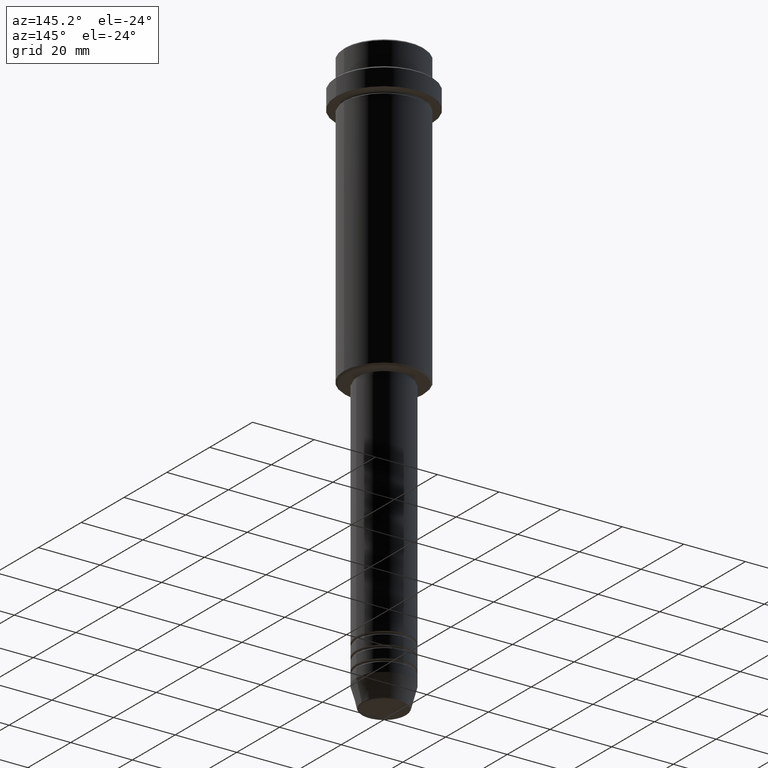
[diagram: clean part render]
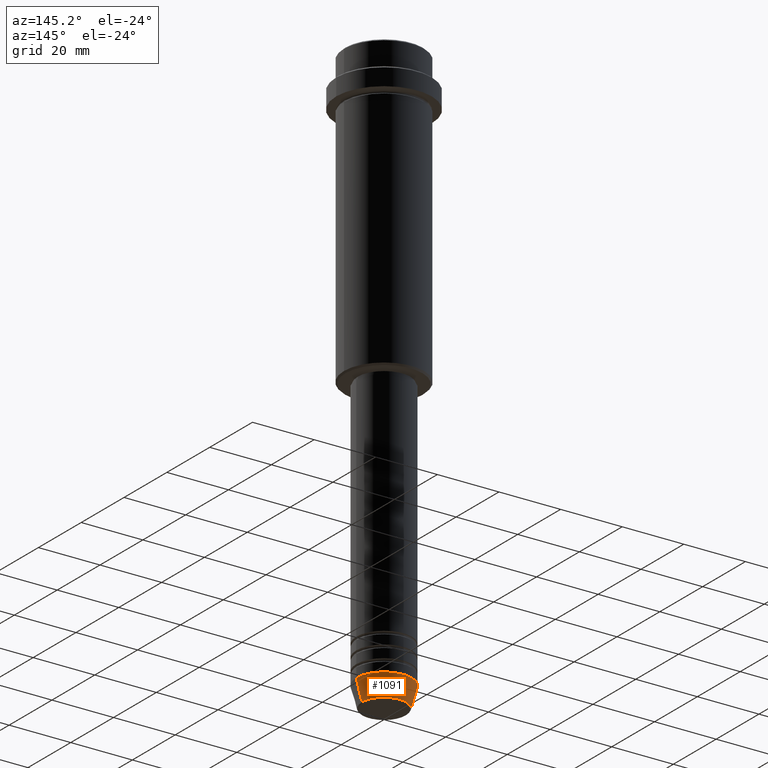
[diagram: same view with one face highlighted and labeled with its STEP entity id]
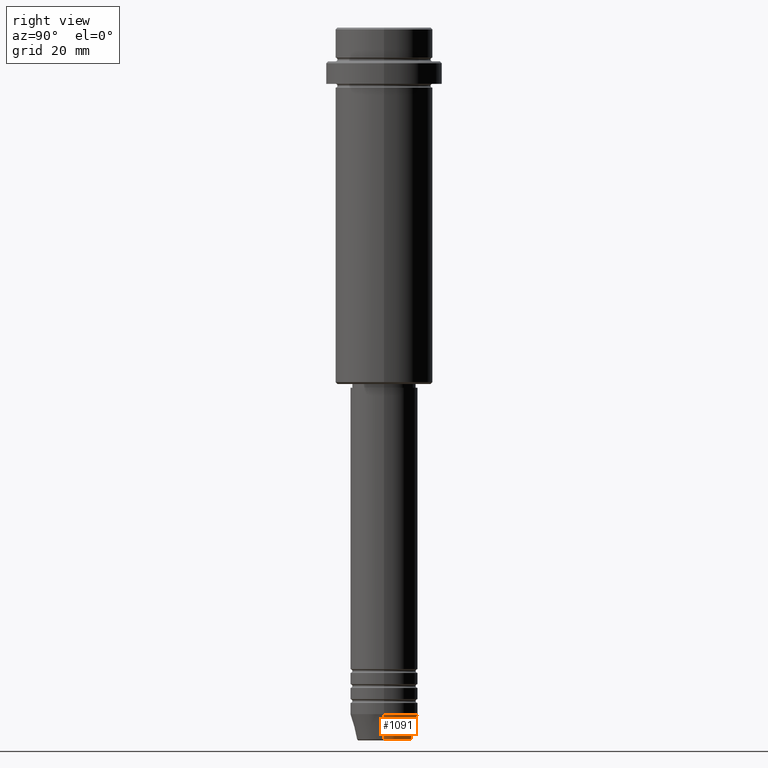
[diagram: same view with one face highlighted and labeled with its STEP entity id]
A machine part, auxiliary view. The second image highlights one B-rep face of the part: STEP entity #1091.
A second angle (right view) of the same face is appended — the face is thin or edge-on in the first view.
In plain terms, the highlighted conical surface has half-angle 15 deg.
Its self-contained STEP definition (entity closure, byte-faithful):
#46 = ORIENTED_EDGE ( 'NONE', *, *, #511, .T. ) ;
#82 = EDGE_LOOP ( 'NONE', ( #742, #46, #105, #1368 ) ) ;
#96 = CARTESIAN_POINT ( 'NONE',  ( -7.223655072137189492, 9.934123627281765110E-16, -189.6294095225512706 ) ) ;
#105 = ORIENTED_EDGE ( 'NONE', *, *, #865, .F. ) ;
#148 = CARTESIAN_POINT ( 'NONE',  ( 0.000000000000000000, 0.000000000000000000, -189.6294095225512706 ) ) ;
#349 = AXIS2_PLACEMENT_3D ( 'NONE', #148, #1319, #891 ) ;
#388 = DIRECTION ( 'NONE',  ( 0.2588190451025213501, 0.000000000000000000, 0.9659258262890680902 ) ) ;
#505 = DIRECTION ( 'NONE',  ( -0.000000000000000000, -0.000000000000000000, 1.000000000000000000 ) ) ;
#511 = EDGE_CURVE ( 'NONE', #523, #914, #639, .T. ) ;
#523 = VERTEX_POINT ( 'NONE', #96 ) ;
#563 = EDGE_CURVE ( 'NONE', #957, #523, #1009, .T. ) ;
#581 = VECTOR ( 'NONE', #1074, 1000.000000000000000 ) ;
#639 = LINE ( 'NONE', #1079, #581 ) ;
#658 = DIRECTION ( 'NONE',  ( 1.000000000000000000, 0.000000000000000000, 0.000000000000000000 ) ) ;
#720 = CARTESIAN_POINT ( 'NONE',  ( 9.000000000000000000, 0.000000000000000000, -183.0000000000000000 ) ) ;
#726 = LINE ( 'NONE', #720, #854 ) ;
#732 = DIRECTION ( 'NONE',  ( 1.000000000000000000, 0.000000000000000000, 0.000000000000000000 ) ) ;
#742 = ORIENTED_EDGE ( 'NONE', *, *, #563, .T. ) ;
#778 = EDGE_CURVE ( 'NONE', #957, #1122, #726, .T. ) ;
#789 = FACE_OUTER_BOUND ( 'NONE', #82, .T. ) ;
#832 = CONICAL_SURFACE ( 'NONE', #1159, 9.000000000000000000, 0.2617993877991500740 ) ;
#850 = CARTESIAN_POINT ( 'NONE',  ( 7.223655072137188604, 0.000000000000000000, -189.6294095225512706 ) ) ;
#854 = VECTOR ( 'NONE', #388, 1000.000000000000000 ) ;
#865 = EDGE_CURVE ( 'NONE', #1122, #914, #987, .T. ) ;
#891 = DIRECTION ( 'NONE',  ( 1.000000000000000000, 0.000000000000000000, 0.000000000000000000 ) ) ;
#914 = VERTEX_POINT ( 'NONE', #1204 ) ;
#957 = VERTEX_POINT ( 'NONE', #850 ) ;
#987 = CIRCLE ( 'NONE', #1403, 9.000000000000000000 ) ;
#989 = DIRECTION ( 'NONE',  ( -0.000000000000000000, -0.000000000000000000, 1.000000000000000000 ) ) ;
#1009 = CIRCLE ( 'NONE', #349, 7.223655072137188604 ) ;
#1074 = DIRECTION ( 'NONE',  ( -0.2588190451025213501, 3.169619151431772337E-17, 0.9659258262890680902 ) ) ;
#1079 = CARTESIAN_POINT ( 'NONE',  ( -9.000000000000000000, 1.102182119232617714E-15, -183.0000000000000000 ) ) ;
#1091 = ADVANCED_FACE ( 'NONE', ( #789 ), #832, .T. ) ;
#1122 = VERTEX_POINT ( 'NONE', #1213 ) ;
#1159 = AXIS2_PLACEMENT_3D ( 'NONE', #1227, #989, #658 ) ;
#1204 = CARTESIAN_POINT ( 'NONE',  ( -9.000000000000000000, 1.102182119232617714E-15, -183.0000000000000000 ) ) ;
#1213 = CARTESIAN_POINT ( 'NONE',  ( 9.000000000000000000, 0.000000000000000000, -183.0000000000000000 ) ) ;
#1227 = CARTESIAN_POINT ( 'NONE',  ( 0.000000000000000000, 0.000000000000000000, -183.0000000000000000 ) ) ;
#1319 = DIRECTION ( 'NONE',  ( -0.000000000000000000, -0.000000000000000000, 1.000000000000000000 ) ) ;
#1362 = CARTESIAN_POINT ( 'NONE',  ( 0.000000000000000000, 0.000000000000000000, -183.0000000000000000 ) ) ;
#1368 = ORIENTED_EDGE ( 'NONE', *, *, #778, .F. ) ;
#1403 = AXIS2_PLACEMENT_3D ( 'NONE', #1362, #505, #732 ) ;